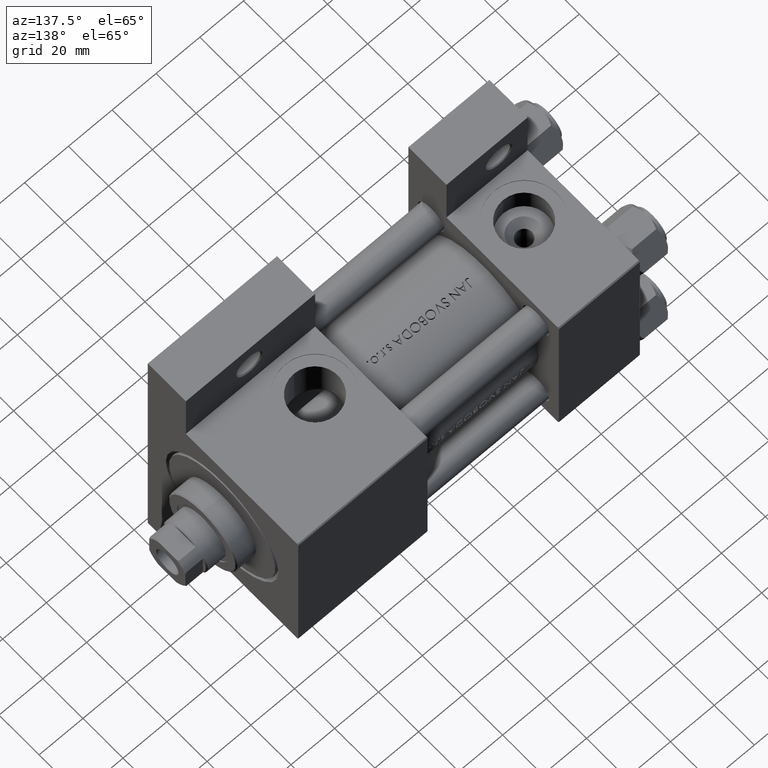
[diagram: clean part render]
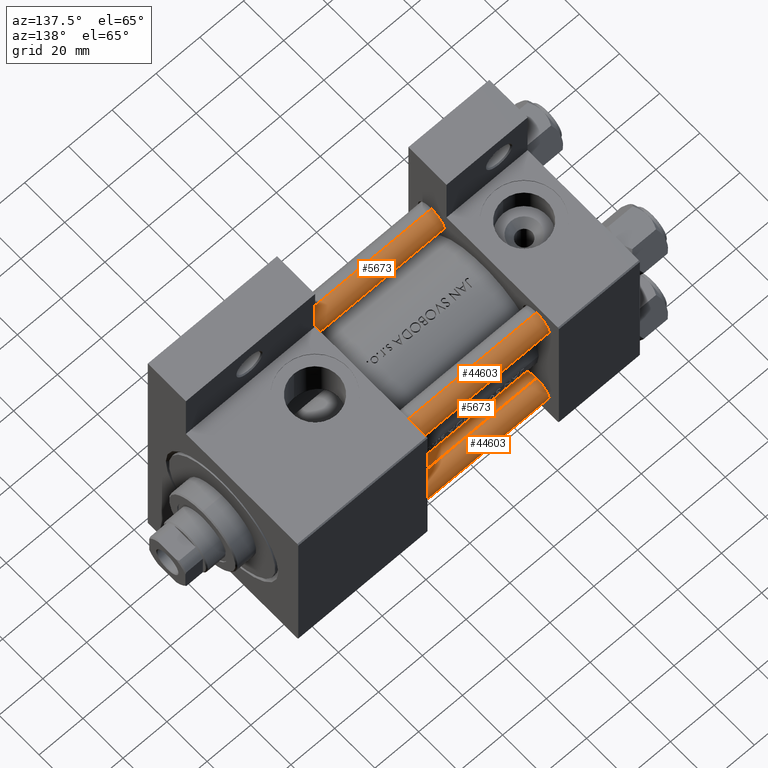
[diagram: same view with one multi-face feature highlighted, each face labeled with its STEP entity id]
A machine part, auxiliary view. The highlighted faces form ONE feature: a constant-radius fillet chain: 4 tangent blend faces with common blend radius 6 mm. The faces share edges in the B-rep.
Their STEP definitions:
[1] entity #44603 (Cylinder):
#314 = CYLINDRICAL_SURFACE ( 'NONE', #15352, 6.000000000000000888 ) ;
#3728 = CARTESIAN_POINT ( 'NONE',  ( 0.000000000000000000, 0.000000000000000000, 0.5000000000000004441 ) ) ;
#3873 = VERTEX_POINT ( 'NONE', #17381 ) ;
#6793 = FACE_OUTER_BOUND ( 'NONE', #37937, .T. ) ;
#7247 = VERTEX_POINT ( 'NONE', #28589 ) ;
#8218 = EDGE_CURVE ( 'NONE', #42420, #3873, #32886, .T. ) ;
#11466 = AXIS2_PLACEMENT_3D ( 'NONE', #20494, #47633, #40423 ) ;
#11742 = DIRECTION ( 'NONE',  ( -1.000000000000000000, 0.000000000000000000, 0.000000000000000000 ) ) ;
#11867 = EDGE_CURVE ( 'NONE', #7247, #3873, #45808, .T. ) ;
#14983 = EDGE_CURVE ( 'NONE', #34877, #42420, #41652, .T. ) ;
#15352 = AXIS2_PLACEMENT_3D ( 'NONE', #15497, #45904, #11742 ) ;
#15497 = CARTESIAN_POINT ( 'NONE',  ( 0.000000000000000000, 0.000000000000000000, 126.0000000000000000 ) ) ;
#17381 = CARTESIAN_POINT ( 'NONE',  ( -6.000000000000000888, 0.000000000000000000, 0.5000000000000004441 ) ) ;
#18901 = DIRECTION ( 'NONE',  ( -0.000000000000000000, -0.000000000000000000, 1.000000000000000000 ) ) ;
#20494 = CARTESIAN_POINT ( 'NONE',  ( 0.000000000000000000, 0.000000000000000000, 125.5000000000000000 ) ) ;
#21104 = ORIENTED_EDGE ( 'NONE', *, *, #11867, .F. ) ;
#23110 = CARTESIAN_POINT ( 'NONE',  ( 6.000000000000000888, 7.347880794884120722E-16, 0.5000000000000004441 ) ) ;
#26890 = CARTESIAN_POINT ( 'NONE',  ( -6.000000000000000888, 0.000000000000000000, 126.0000000000000000 ) ) ;
#28589 = CARTESIAN_POINT ( 'NONE',  ( -6.000000000000000888, 0.000000000000000000, 125.5000000000000000 ) ) ;
#32886 = CIRCLE ( 'NONE', #40066, 6.000000000000000888 ) ;
#33739 = ORIENTED_EDGE ( 'NONE', *, *, #47643, .T. ) ;
#34126 = DIRECTION ( 'NONE',  ( 1.000000000000000000, 0.000000000000000000, 0.000000000000000000 ) ) ;
#34877 = VERTEX_POINT ( 'NONE', #42399 ) ;
#35073 = DIRECTION ( 'NONE',  ( -0.000000000000000000, -0.000000000000000000, -1.000000000000000000 ) ) ;
#35622 = VECTOR ( 'NONE', #45384, 1000.000000000000000 ) ;
#35911 = ORIENTED_EDGE ( 'NONE', *, *, #14983, .T. ) ;
#37937 = EDGE_LOOP ( 'NONE', ( #33739, #35911, #44305, #21104 ) ) ;
#40066 = AXIS2_PLACEMENT_3D ( 'NONE', #3728, #18901, #34126 ) ;
#40423 = DIRECTION ( 'NONE',  ( 1.000000000000000000, 0.000000000000000000, 0.000000000000000000 ) ) ;
#41652 = LINE ( 'NONE', #48623, #35622 ) ;
#42399 = CARTESIAN_POINT ( 'NONE',  ( 6.000000000000000888, 7.347880794884120722E-16, 125.5000000000000000 ) ) ;
#42420 = VERTEX_POINT ( 'NONE', #23110 ) ;
#43367 = VECTOR ( 'NONE', #35073, 1000.000000000000000 ) ;
#44305 = ORIENTED_EDGE ( 'NONE', *, *, #8218, .T. ) ;
#44603 = ADVANCED_FACE ( 'NONE', ( #6793 ), #314, .T. ) ;
#45384 = DIRECTION ( 'NONE',  ( -0.000000000000000000, -0.000000000000000000, -1.000000000000000000 ) ) ;
#45808 = LINE ( 'NONE', #26890, #43367 ) ;
#45904 = DIRECTION ( 'NONE',  ( -0.000000000000000000, -0.000000000000000000, -1.000000000000000000 ) ) ;
#47633 = DIRECTION ( 'NONE',  ( 0.000000000000000000, 0.000000000000000000, -1.000000000000000000 ) ) ;
#47643 = EDGE_CURVE ( 'NONE', #7247, #34877, #48070, .T. ) ;
#48070 = CIRCLE ( 'NONE', #11466, 6.000000000000000888 ) ;
#48623 = CARTESIAN_POINT ( 'NONE',  ( 6.000000000000000888, 7.347880794884120722E-16, 126.0000000000000000 ) ) ;
[2] entity #5673 (Cylinder):
#1058 = CARTESIAN_POINT ( 'NONE',  ( 0.000000000000000000, 0.000000000000000000, 126.0000000000000000 ) ) ;
#3873 = VERTEX_POINT ( 'NONE', #17381 ) ;
#4577 = DIRECTION ( 'NONE',  ( 1.000000000000000000, 0.000000000000000000, 0.000000000000000000 ) ) ;
#5673 = ADVANCED_FACE ( 'NONE', ( #47127 ), #16480, .T. ) ;
#6323 = AXIS2_PLACEMENT_3D ( 'NONE', #12752, #46662, #4577 ) ;
#6566 = ORIENTED_EDGE ( 'NONE', *, *, #31973, .T. ) ;
#6823 = CARTESIAN_POINT ( 'NONE',  ( 0.000000000000000000, 0.000000000000000000, 125.5000000000000000 ) ) ;
#7247 = VERTEX_POINT ( 'NONE', #28589 ) ;
#10512 = EDGE_LOOP ( 'NONE', ( #15750, #18994, #30934, #6566 ) ) ;
#11867 = EDGE_CURVE ( 'NONE', #7247, #3873, #45808, .T. ) ;
#12752 = CARTESIAN_POINT ( 'NONE',  ( 0.000000000000000000, 0.000000000000000000, 0.5000000000000004441 ) ) ;
#14851 = EDGE_CURVE ( 'NONE', #34877, #7247, #46754, .T. ) ;
#14983 = EDGE_CURVE ( 'NONE', #34877, #42420, #41652, .T. ) ;
#15740 = AXIS2_PLACEMENT_3D ( 'NONE', #6823, #22030, #37226 ) ;
#15750 = ORIENTED_EDGE ( 'NONE', *, *, #14983, .F. ) ;
#16480 = CYLINDRICAL_SURFACE ( 'NONE', #28835, 6.000000000000000888 ) ;
#17381 = CARTESIAN_POINT ( 'NONE',  ( -6.000000000000000888, 0.000000000000000000, 0.5000000000000004441 ) ) ;
#18994 = ORIENTED_EDGE ( 'NONE', *, *, #14851, .T. ) ;
#22030 = DIRECTION ( 'NONE',  ( 0.000000000000000000, 0.000000000000000000, -1.000000000000000000 ) ) ;
#23110 = CARTESIAN_POINT ( 'NONE',  ( 6.000000000000000888, 7.347880794884120722E-16, 0.5000000000000004441 ) ) ;
#26890 = CARTESIAN_POINT ( 'NONE',  ( -6.000000000000000888, 0.000000000000000000, 126.0000000000000000 ) ) ;
#28589 = CARTESIAN_POINT ( 'NONE',  ( -6.000000000000000888, 0.000000000000000000, 125.5000000000000000 ) ) ;
#28835 = AXIS2_PLACEMENT_3D ( 'NONE', #1058, #46648, #42907 ) ;
#30934 = ORIENTED_EDGE ( 'NONE', *, *, #11867, .T. ) ;
#31973 = EDGE_CURVE ( 'NONE', #3873, #42420, #35759, .T. ) ;
#34877 = VERTEX_POINT ( 'NONE', #42399 ) ;
#35073 = DIRECTION ( 'NONE',  ( -0.000000000000000000, -0.000000000000000000, -1.000000000000000000 ) ) ;
#35622 = VECTOR ( 'NONE', #45384, 1000.000000000000000 ) ;
#35759 = CIRCLE ( 'NONE', #6323, 6.000000000000000888 ) ;
#37226 = DIRECTION ( 'NONE',  ( 1.000000000000000000, 0.000000000000000000, 0.000000000000000000 ) ) ;
#41652 = LINE ( 'NONE', #48623, #35622 ) ;
#42399 = CARTESIAN_POINT ( 'NONE',  ( 6.000000000000000888, 7.347880794884120722E-16, 125.5000000000000000 ) ) ;
#42420 = VERTEX_POINT ( 'NONE', #23110 ) ;
#42907 = DIRECTION ( 'NONE',  ( -1.000000000000000000, 0.000000000000000000, 0.000000000000000000 ) ) ;
#43367 = VECTOR ( 'NONE', #35073, 1000.000000000000000 ) ;
#45384 = DIRECTION ( 'NONE',  ( -0.000000000000000000, -0.000000000000000000, -1.000000000000000000 ) ) ;
#45808 = LINE ( 'NONE', #26890, #43367 ) ;
#46648 = DIRECTION ( 'NONE',  ( -0.000000000000000000, -0.000000000000000000, -1.000000000000000000 ) ) ;
#46662 = DIRECTION ( 'NONE',  ( -0.000000000000000000, -0.000000000000000000, 1.000000000000000000 ) ) ;
#46754 = CIRCLE ( 'NONE', #15740, 6.000000000000000888 ) ;
#47127 = FACE_OUTER_BOUND ( 'NONE', #10512, .T. ) ;
#48623 = CARTESIAN_POINT ( 'NONE',  ( 6.000000000000000888, 7.347880794884120722E-16, 126.0000000000000000 ) ) ;
[3] entity #44603 (Cylinder):
#314 = CYLINDRICAL_SURFACE ( 'NONE', #15352, 6.000000000000000888 ) ;
#3728 = CARTESIAN_POINT ( 'NONE',  ( 0.000000000000000000, 0.000000000000000000, 0.5000000000000004441 ) ) ;
#3873 = VERTEX_POINT ( 'NONE', #17381 ) ;
#6793 = FACE_OUTER_BOUND ( 'NONE', #37937, .T. ) ;
#7247 = VERTEX_POINT ( 'NONE', #28589 ) ;
#8218 = EDGE_CURVE ( 'NONE', #42420, #3873, #32886, .T. ) ;
#11466 = AXIS2_PLACEMENT_3D ( 'NONE', #20494, #47633, #40423 ) ;
#11742 = DIRECTION ( 'NONE',  ( -1.000000000000000000, 0.000000000000000000, 0.000000000000000000 ) ) ;
#11867 = EDGE_CURVE ( 'NONE', #7247, #3873, #45808, .T. ) ;
#14983 = EDGE_CURVE ( 'NONE', #34877, #42420, #41652, .T. ) ;
#15352 = AXIS2_PLACEMENT_3D ( 'NONE', #15497, #45904, #11742 ) ;
#15497 = CARTESIAN_POINT ( 'NONE',  ( 0.000000000000000000, 0.000000000000000000, 126.0000000000000000 ) ) ;
#17381 = CARTESIAN_POINT ( 'NONE',  ( -6.000000000000000888, 0.000000000000000000, 0.5000000000000004441 ) ) ;
#18901 = DIRECTION ( 'NONE',  ( -0.000000000000000000, -0.000000000000000000, 1.000000000000000000 ) ) ;
#20494 = CARTESIAN_POINT ( 'NONE',  ( 0.000000000000000000, 0.000000000000000000, 125.5000000000000000 ) ) ;
#21104 = ORIENTED_EDGE ( 'NONE', *, *, #11867, .F. ) ;
#23110 = CARTESIAN_POINT ( 'NONE',  ( 6.000000000000000888, 7.347880794884120722E-16, 0.5000000000000004441 ) ) ;
#26890 = CARTESIAN_POINT ( 'NONE',  ( -6.000000000000000888, 0.000000000000000000, 126.0000000000000000 ) ) ;
#28589 = CARTESIAN_POINT ( 'NONE',  ( -6.000000000000000888, 0.000000000000000000, 125.5000000000000000 ) ) ;
#32886 = CIRCLE ( 'NONE', #40066, 6.000000000000000888 ) ;
#33739 = ORIENTED_EDGE ( 'NONE', *, *, #47643, .T. ) ;
#34126 = DIRECTION ( 'NONE',  ( 1.000000000000000000, 0.000000000000000000, 0.000000000000000000 ) ) ;
#34877 = VERTEX_POINT ( 'NONE', #42399 ) ;
#35073 = DIRECTION ( 'NONE',  ( -0.000000000000000000, -0.000000000000000000, -1.000000000000000000 ) ) ;
#35622 = VECTOR ( 'NONE', #45384, 1000.000000000000000 ) ;
#35911 = ORIENTED_EDGE ( 'NONE', *, *, #14983, .T. ) ;
#37937 = EDGE_LOOP ( 'NONE', ( #33739, #35911, #44305, #21104 ) ) ;
#40066 = AXIS2_PLACEMENT_3D ( 'NONE', #3728, #18901, #34126 ) ;
#40423 = DIRECTION ( 'NONE',  ( 1.000000000000000000, 0.000000000000000000, 0.000000000000000000 ) ) ;
#41652 = LINE ( 'NONE', #48623, #35622 ) ;
#42399 = CARTESIAN_POINT ( 'NONE',  ( 6.000000000000000888, 7.347880794884120722E-16, 125.5000000000000000 ) ) ;
#42420 = VERTEX_POINT ( 'NONE', #23110 ) ;
#43367 = VECTOR ( 'NONE', #35073, 1000.000000000000000 ) ;
#44305 = ORIENTED_EDGE ( 'NONE', *, *, #8218, .T. ) ;
#44603 = ADVANCED_FACE ( 'NONE', ( #6793 ), #314, .T. ) ;
#45384 = DIRECTION ( 'NONE',  ( -0.000000000000000000, -0.000000000000000000, -1.000000000000000000 ) ) ;
#45808 = LINE ( 'NONE', #26890, #43367 ) ;
#45904 = DIRECTION ( 'NONE',  ( -0.000000000000000000, -0.000000000000000000, -1.000000000000000000 ) ) ;
#47633 = DIRECTION ( 'NONE',  ( 0.000000000000000000, 0.000000000000000000, -1.000000000000000000 ) ) ;
#47643 = EDGE_CURVE ( 'NONE', #7247, #34877, #48070, .T. ) ;
#48070 = CIRCLE ( 'NONE', #11466, 6.000000000000000888 ) ;
#48623 = CARTESIAN_POINT ( 'NONE',  ( 6.000000000000000888, 7.347880794884120722E-16, 126.0000000000000000 ) ) ;
[4] entity #5673 (Cylinder):
#1058 = CARTESIAN_POINT ( 'NONE',  ( 0.000000000000000000, 0.000000000000000000, 126.0000000000000000 ) ) ;
#3873 = VERTEX_POINT ( 'NONE', #17381 ) ;
#4577 = DIRECTION ( 'NONE',  ( 1.000000000000000000, 0.000000000000000000, 0.000000000000000000 ) ) ;
#5673 = ADVANCED_FACE ( 'NONE', ( #47127 ), #16480, .T. ) ;
#6323 = AXIS2_PLACEMENT_3D ( 'NONE', #12752, #46662, #4577 ) ;
#6566 = ORIENTED_EDGE ( 'NONE', *, *, #31973, .T. ) ;
#6823 = CARTESIAN_POINT ( 'NONE',  ( 0.000000000000000000, 0.000000000000000000, 125.5000000000000000 ) ) ;
#7247 = VERTEX_POINT ( 'NONE', #28589 ) ;
#10512 = EDGE_LOOP ( 'NONE', ( #15750, #18994, #30934, #6566 ) ) ;
#11867 = EDGE_CURVE ( 'NONE', #7247, #3873, #45808, .T. ) ;
#12752 = CARTESIAN_POINT ( 'NONE',  ( 0.000000000000000000, 0.000000000000000000, 0.5000000000000004441 ) ) ;
#14851 = EDGE_CURVE ( 'NONE', #34877, #7247, #46754, .T. ) ;
#14983 = EDGE_CURVE ( 'NONE', #34877, #42420, #41652, .T. ) ;
#15740 = AXIS2_PLACEMENT_3D ( 'NONE', #6823, #22030, #37226 ) ;
#15750 = ORIENTED_EDGE ( 'NONE', *, *, #14983, .F. ) ;
#16480 = CYLINDRICAL_SURFACE ( 'NONE', #28835, 6.000000000000000888 ) ;
#17381 = CARTESIAN_POINT ( 'NONE',  ( -6.000000000000000888, 0.000000000000000000, 0.5000000000000004441 ) ) ;
#18994 = ORIENTED_EDGE ( 'NONE', *, *, #14851, .T. ) ;
#22030 = DIRECTION ( 'NONE',  ( 0.000000000000000000, 0.000000000000000000, -1.000000000000000000 ) ) ;
#23110 = CARTESIAN_POINT ( 'NONE',  ( 6.000000000000000888, 7.347880794884120722E-16, 0.5000000000000004441 ) ) ;
#26890 = CARTESIAN_POINT ( 'NONE',  ( -6.000000000000000888, 0.000000000000000000, 126.0000000000000000 ) ) ;
#28589 = CARTESIAN_POINT ( 'NONE',  ( -6.000000000000000888, 0.000000000000000000, 125.5000000000000000 ) ) ;
#28835 = AXIS2_PLACEMENT_3D ( 'NONE', #1058, #46648, #42907 ) ;
#30934 = ORIENTED_EDGE ( 'NONE', *, *, #11867, .T. ) ;
#31973 = EDGE_CURVE ( 'NONE', #3873, #42420, #35759, .T. ) ;
#34877 = VERTEX_POINT ( 'NONE', #42399 ) ;
#35073 = DIRECTION ( 'NONE',  ( -0.000000000000000000, -0.000000000000000000, -1.000000000000000000 ) ) ;
#35622 = VECTOR ( 'NONE', #45384, 1000.000000000000000 ) ;
#35759 = CIRCLE ( 'NONE', #6323, 6.000000000000000888 ) ;
#37226 = DIRECTION ( 'NONE',  ( 1.000000000000000000, 0.000000000000000000, 0.000000000000000000 ) ) ;
#41652 = LINE ( 'NONE', #48623, #35622 ) ;
#42399 = CARTESIAN_POINT ( 'NONE',  ( 6.000000000000000888, 7.347880794884120722E-16, 125.5000000000000000 ) ) ;
#42420 = VERTEX_POINT ( 'NONE', #23110 ) ;
#42907 = DIRECTION ( 'NONE',  ( -1.000000000000000000, 0.000000000000000000, 0.000000000000000000 ) ) ;
#43367 = VECTOR ( 'NONE', #35073, 1000.000000000000000 ) ;
#45384 = DIRECTION ( 'NONE',  ( -0.000000000000000000, -0.000000000000000000, -1.000000000000000000 ) ) ;
#45808 = LINE ( 'NONE', #26890, #43367 ) ;
#46648 = DIRECTION ( 'NONE',  ( -0.000000000000000000, -0.000000000000000000, -1.000000000000000000 ) ) ;
#46662 = DIRECTION ( 'NONE',  ( -0.000000000000000000, -0.000000000000000000, 1.000000000000000000 ) ) ;
#46754 = CIRCLE ( 'NONE', #15740, 6.000000000000000888 ) ;
#47127 = FACE_OUTER_BOUND ( 'NONE', #10512, .T. ) ;
#48623 = CARTESIAN_POINT ( 'NONE',  ( 6.000000000000000888, 7.347880794884120722E-16, 126.0000000000000000 ) ) ;